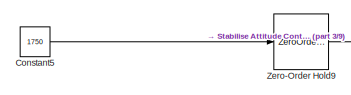
[diagram: root canvas - part 1/9, top left region]
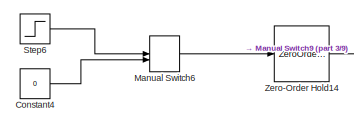
[diagram: root canvas - part 2/9, top left region]
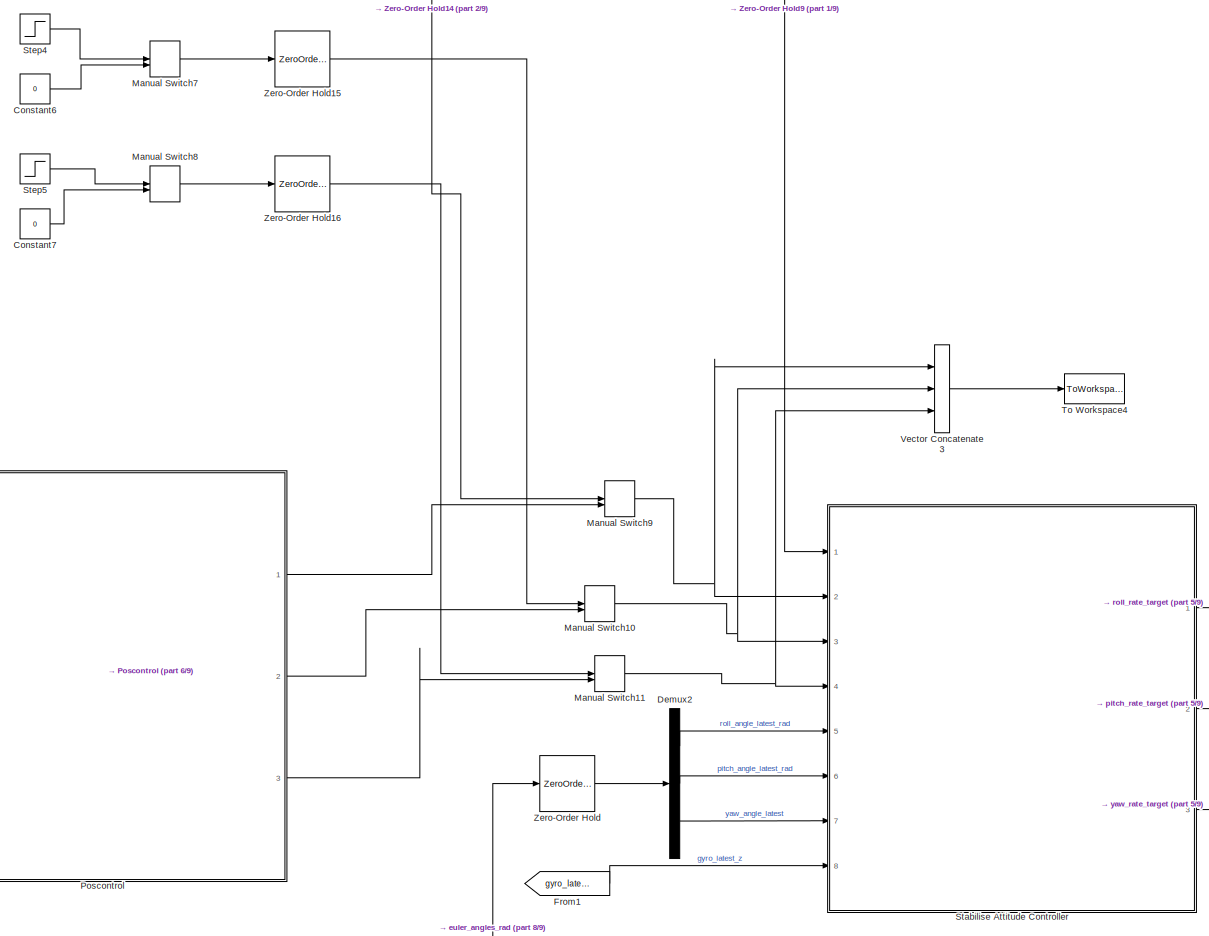
[diagram: root canvas - part 3/9, middle left region]
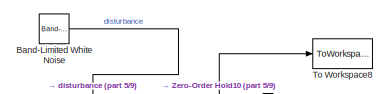
[diagram: root canvas - part 4/9, central region]
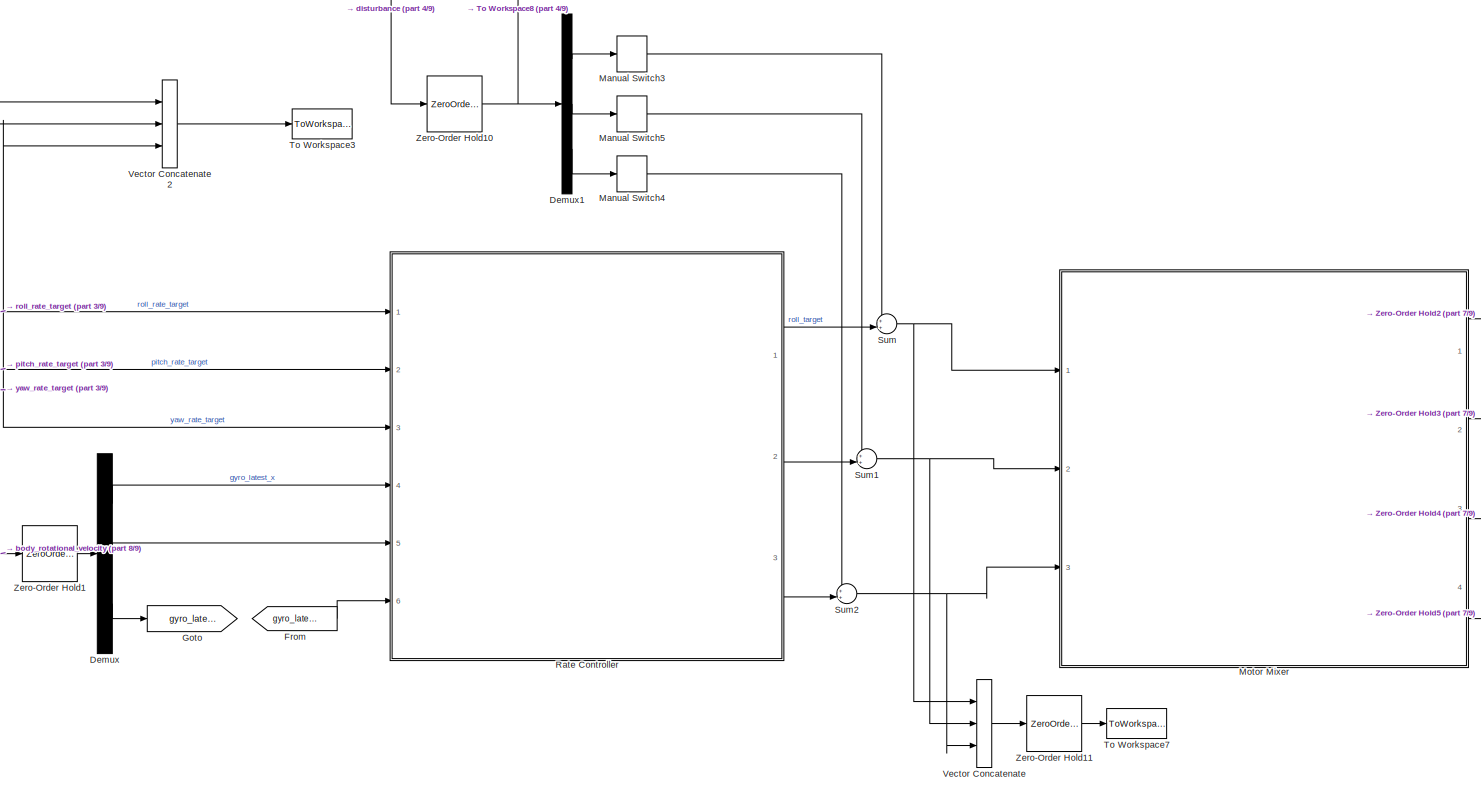
[diagram: root canvas - part 5/9, central region]
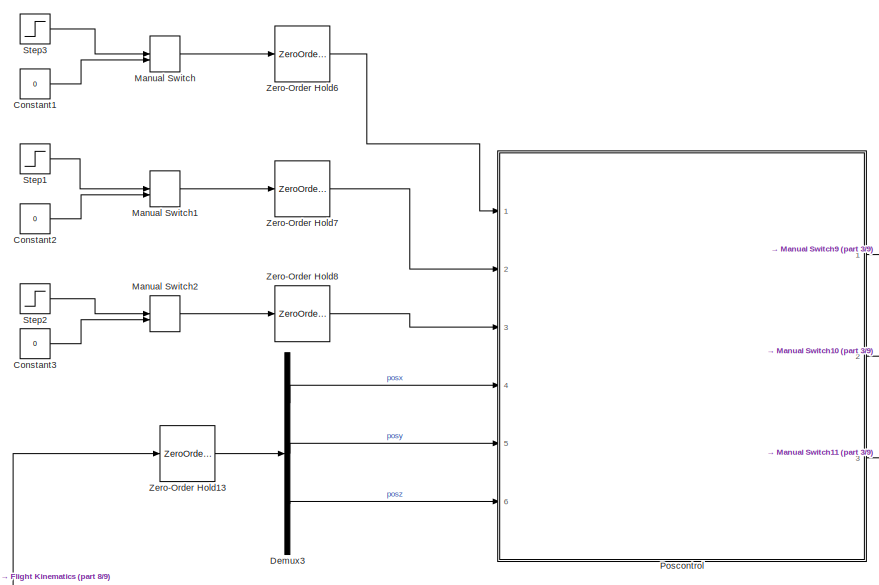
[diagram: root canvas - part 6/9, middle left region]
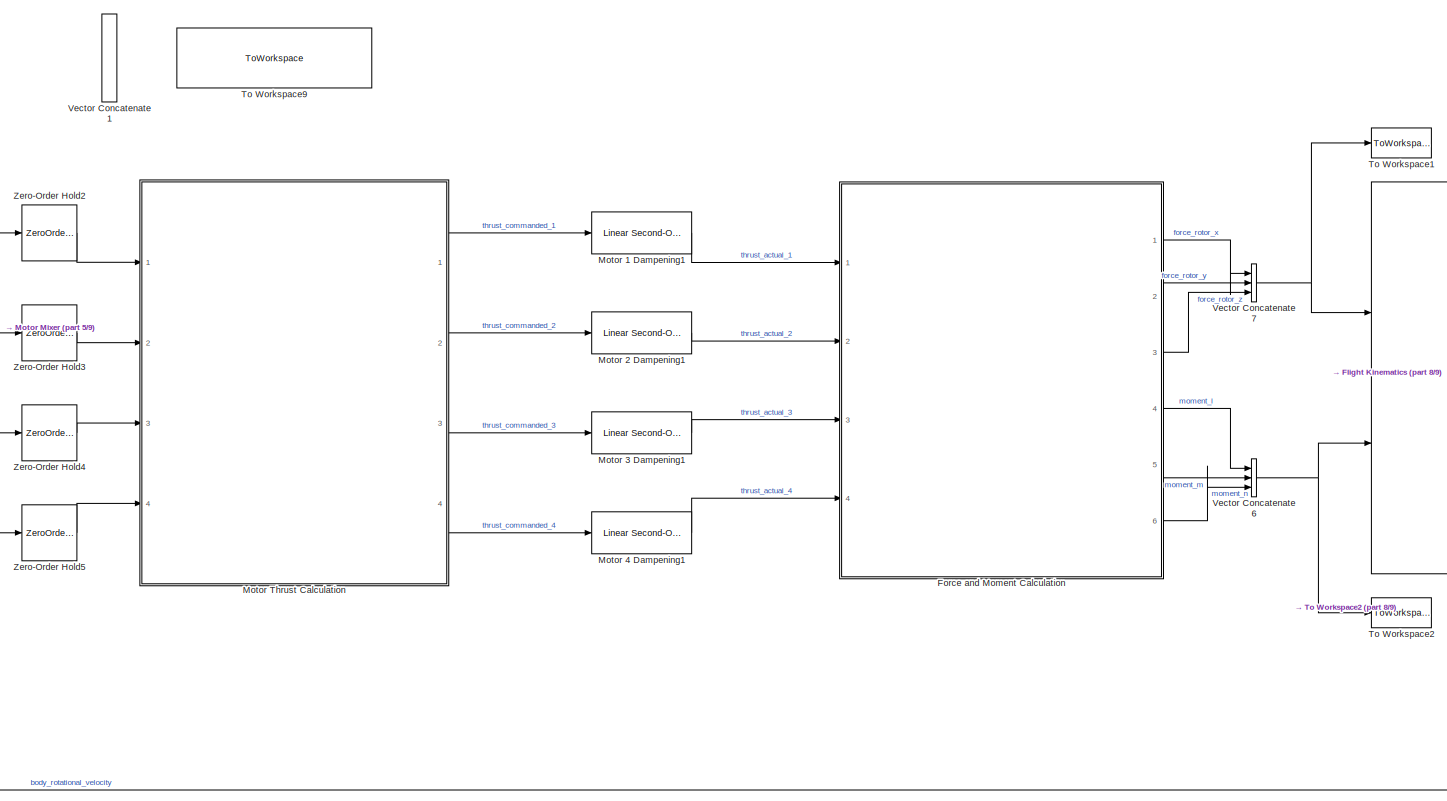
[diagram: root canvas - part 7/9, central region]
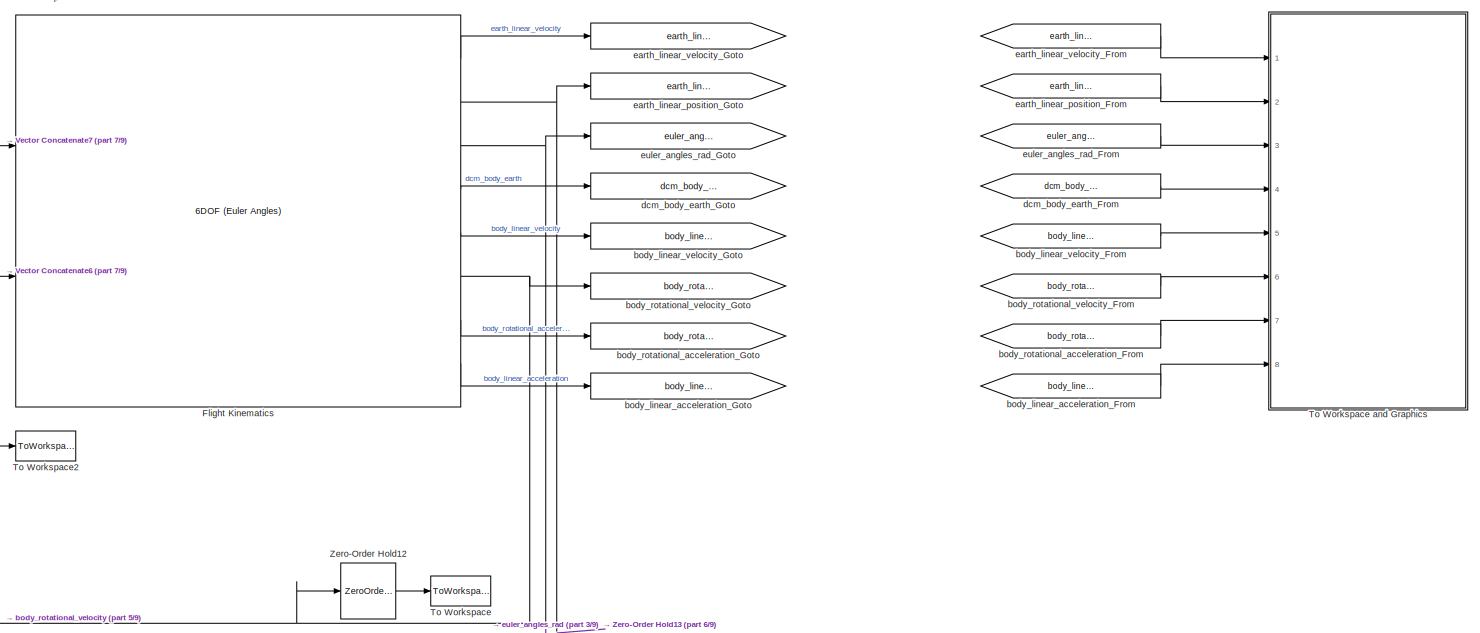
[diagram: root canvas - part 8/9, bottom right region]
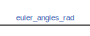
[diagram: root canvas - part 9/9, bottom center region]
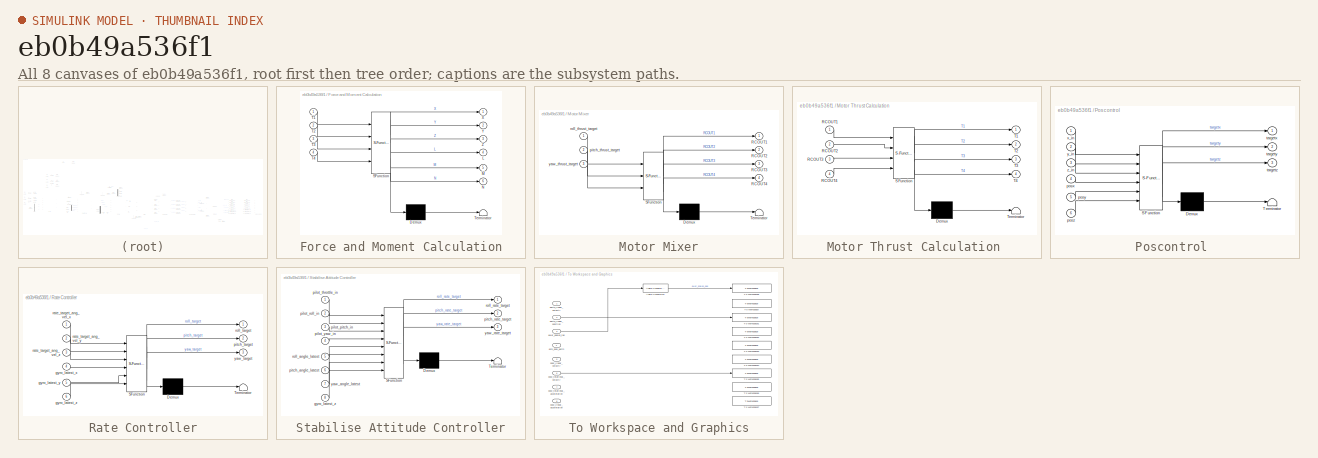
[diagram: thumbnail index - all 8 canvases of the model, root first then tree order]
MODEL slx_eb0b49a536f1
KIND model
CONFIG AbsTol = auto
CONFIG FixedStep = Ts
CONFIG MaxStep = auto
CONFIG MinStep = auto
CONFIG RelTol = 1e-3
CONFIG SampleTimeConstraint = Unconstrained
CONFIG Solver = VariableStepAuto
CONFIG SolverMode = Auto
CONFIG SolverName = VariableStepAuto
CONFIG StartTime = 0.0
CONFIG StopTime = 10
WORKSPACE source: MAT-file member
WORKSPACE MCOS: class17 (value not decoded)
BLOCK [Reference] Band-Limited White Noise  REF=simulink/Sources/Band-Limited
White Noise
  Ports = [0, 1]
  SourceBlock = simulink/Sources/Band-Limited\nWhite Noise
  SourceType = Band-Limited White Noise.
BLOCK [Constant] Constant1
  SampleTime = Ts
  Value = 0
BLOCK [Constant] Constant2
  SampleTime = Ts
  Value = 0
BLOCK [Constant] Constant3
  SampleTime = Ts
  Value = 0
BLOCK [Constant] Constant4
  SampleTime = Ts
  Value = 0
BLOCK [Constant] Constant5
  SampleTime = Ts
  Value = 1750
BLOCK [Constant] Constant6
  SampleTime = Ts
  Value = 0
BLOCK [Constant] Constant7
  SampleTime = Ts
  Value = 0
BLOCK [Demux] Demux
  DisplayOption = bar
  Outputs = 3
  Ports = [1, 3]
BLOCK [Demux] Demux1
  DisplayOption = bar
  Outputs = 3
  Ports = [1, 3]
BLOCK [Demux] Demux2
  DisplayOption = bar
  Outputs = 3
  Ports = [1, 3]
BLOCK [Demux] Demux3
  DisplayOption = bar
  Outputs = 3
  Ports = [1, 3]
BLOCK [Reference] Flight Kinematics  REF=aerolib6dof2/6DOF (Euler Angles)
  Ports = [2, 8]
  SourceBlock = aerolib6dof2/6DOF (Euler Angles)
  SourceType = 6DOF EoM (Body Axis)
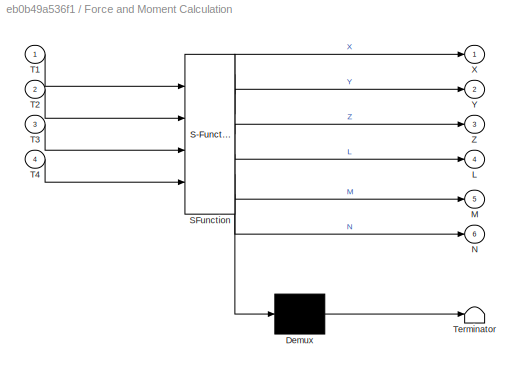
BLOCK [SubSystem] Force and Moment Calculation
  ErrorFcn = Stateflow.Translate.translate
  PermitHierarchicalResolution = ExplicitOnly
  Ports = [4, 6]
  RequestExecContextInheritance = off
  SFBlockType = MATLAB Function
  TreatAsAtomicUnit = on
  Variant = off
BLOCK [Demux] Force and Moment Calculation/ Demux 
  Outputs = 1
  Ports = [1, 1]
BLOCK [S-Function] Force and Moment Calculation/ SFunction 
  EnableBusSupport = on
  FunctionName = sf_sfun
  PortCounts = [4 7]
  Ports = [4, 7]
  SFunctionDeploymentMode = off
  Tag = Stateflow S-Function Plantvalidation_poscontrol 6
BLOCK [Terminator] Force and Moment Calculation/ Terminator 
BLOCK [Outport] Force and Moment Calculation/L
  IconDisplay = Port number
  Port = 4
BLOCK [Outport] Force and Moment Calculation/M
  IconDisplay = Port number
  Port = 5
BLOCK [Outport] Force and Moment Calculation/N
  IconDisplay = Port number
  Port = 6
BLOCK [Inport] Force and Moment Calculation/T1
  IconDisplay = Port number
BLOCK [Inport] Force and Moment Calculation/T2
  IconDisplay = Port number
  Port = 2
BLOCK [Inport] Force and Moment Calculation/T3
  IconDisplay = Port number
  Port = 3
BLOCK [Inport] Force and Moment Calculation/T4
  IconDisplay = Port number
  Port = 4
BLOCK [Outport] Force and Moment Calculation/X
  IconDisplay = Port number
BLOCK [Outport] Force and Moment Calculation/Y
  IconDisplay = Port number
  Port = 2
BLOCK [Outport] Force and Moment Calculation/Z
  IconDisplay = Port number
  Port = 3
BLOCK [From] From
  GotoTag = gyro_latest_z
BLOCK [From] From1
  GotoTag = gyro_latest_z
BLOCK [Goto] Goto
  GotoTag = gyro_latest_z
BLOCK [ManualSwitch] Manual Switch
BLOCK [ManualSwitch] Manual Switch1
  CurrentSetting = 0
BLOCK [ManualSwitch] Manual Switch10
  CurrentSetting = 0
BLOCK [ManualSwitch] Manual Switch11
  CurrentSetting = 0
BLOCK [ManualSwitch] Manual Switch2
  CurrentSetting = 0
BLOCK [ManualSwitch] Manual Switch3
  CurrentSetting = 0
BLOCK [ManualSwitch] Manual Switch4
  CurrentSetting = 0
BLOCK [ManualSwitch] Manual Switch5
  CurrentSetting = 0
BLOCK [ManualSwitch] Manual Switch6
BLOCK [ManualSwitch] Manual Switch7
  CurrentSetting = 0
BLOCK [ManualSwitch] Manual Switch8
  CurrentSetting = 0
BLOCK [ManualSwitch] Manual Switch9
  CurrentSetting = 0
BLOCK [Reference] Motor 1 Dampening1  REF=aerolibactuator/Linear Second-Order Actuator
  Ports = [1, 1]
  SourceBlock = aerolibactuator/Linear Second-Order Actuator
  SourceType = LinearSecondOrderActuator
BLOCK [Reference] Motor 2 Dampening1  REF=aerolibactuator/Linear Second-Order Actuator
  Ports = [1, 1]
  SourceBlock = aerolibactuator/Linear Second-Order Actuator
  SourceType = LinearSecondOrderActuator
BLOCK [Reference] Motor 3 Dampening1  REF=aerolibactuator/Linear Second-Order Actuator
  Ports = [1, 1]
  SourceBlock = aerolibactuator/Linear Second-Order Actuator
  SourceType = LinearSecondOrderActuator
BLOCK [Reference] Motor 4 Dampening1  REF=aerolibactuator/Linear Second-Order Actuator
  Ports = [1, 1]
  SourceBlock = aerolibactuator/Linear Second-Order Actuator
  SourceType = LinearSecondOrderActuator
BLOCK [SubSystem] Motor Mixer
  ErrorFcn = Stateflow.Translate.translate
  PermitHierarchicalResolution = ExplicitOnly
  Ports = [3, 4]
  RequestExecContextInheritance = off
  SFBlockType = MATLAB Function
  TreatAsAtomicUnit = on
  Variant = off
BLOCK [Demux] Motor Mixer/ Demux 
  Outputs = 1
  Ports = [1, 1]
BLOCK [S-Function] Motor Mixer/ SFunction 
  EnableBusSupport = on
  FunctionName = sf_sfun
  PortCounts = [3 5]
  Ports = [3, 5]
  SFunctionDeploymentMode = off
  Tag = Stateflow S-Function Plantvalidation_poscontrol 5
BLOCK [Terminator] Motor Mixer/ Terminator 
BLOCK [Outport] Motor Mixer/RCOUT1
  IconDisplay = Port number
BLOCK [Outport] Motor Mixer/RCOUT2
  IconDisplay = Port number
  Port = 2
BLOCK [Outport] Motor Mixer/RCOUT3
  IconDisplay = Port number
  Port = 3
BLOCK [Outport] Motor Mixer/RCOUT4
  IconDisplay = Port number
  Port = 4
BLOCK [Inport] Motor Mixer/pitch_thrust_target
  IconDisplay = Port number
  Port = 2
BLOCK [Inport] Motor Mixer/roll_thrust_target
  IconDisplay = Port number
BLOCK [Inport] Motor Mixer/yaw_thrust_target
  IconDisplay = Port number
  Port = 3
BLOCK [SubSystem] Motor Thrust Calculation 
  ErrorFcn = Stateflow.Translate.translate
  PermitHierarchicalResolution = ExplicitOnly
  Ports = [4, 4]
  RequestExecContextInheritance = off
  SFBlockType = MATLAB Function
  TreatAsAtomicUnit = on
  Variant = off
BLOCK [Demux] Motor Thrust Calculation / Demux 
  Outputs = 1
  Ports = [1, 1]
BLOCK [S-Function] Motor Thrust Calculation / SFunction 
  EnableBusSupport = on
  FunctionName = sf_sfun
  PortCounts = [4 5]
  Ports = [4, 5]
  SFunctionDeploymentMode = off
  Tag = Stateflow S-Function Plantvalidation_poscontrol 8
BLOCK [Terminator] Motor Thrust Calculation / Terminator 
BLOCK [Inport] Motor Thrust Calculation /RCOUT1
  IconDisplay = Port number
BLOCK [Inport] Motor Thrust Calculation /RCOUT2
  IconDisplay = Port number
  Port = 2
BLOCK [Inport] Motor Thrust Calculation /RCOUT3
  IconDisplay = Port number
  Port = 3
BLOCK [Inport] Motor Thrust Calculation /RCOUT4
  IconDisplay = Port number
  Port = 4
BLOCK [Outport] Motor Thrust Calculation /T1
  IconDisplay = Port number
BLOCK [Outport] Motor Thrust Calculation /T2
  IconDisplay = Port number
  Port = 2
BLOCK [Outport] Motor Thrust Calculation /T3
  IconDisplay = Port number
  Port = 3
BLOCK [Outport] Motor Thrust Calculation /T4
  IconDisplay = Port number
  Port = 4
BLOCK [SubSystem] Poscontrol 
  ErrorFcn = Stateflow.Translate.translate
  PermitHierarchicalResolution = ExplicitOnly
  Ports = [6, 3]
  RequestExecContextInheritance = off
  SFBlockType = MATLAB Function
  TreatAsAtomicUnit = on
  Variant = off
BLOCK [Demux] Poscontrol / Demux 
  Outputs = 1
  Ports = [1, 1]
BLOCK [S-Function] Poscontrol / SFunction 
  EnableBusSupport = on
  FunctionName = sf_sfun
  PortCounts = [6 4]
  Ports = [6, 4]
  SFunctionDeploymentMode = off
  Tag = Stateflow S-Function Plantvalidation_poscontrol 3
BLOCK [Terminator] Poscontrol / Terminator 
BLOCK [Inport] Poscontrol /posx
  IconDisplay = Port number
  Port = 4
BLOCK [Inport] Poscontrol /posy
  IconDisplay = Port number
  Port = 5
BLOCK [Inport] Poscontrol /posz
  IconDisplay = Port number
  Port = 6
BLOCK [Outport] Poscontrol /targetx
  IconDisplay = Port number
BLOCK [Outport] Poscontrol /targety
  IconDisplay = Port number
  Port = 2
BLOCK [Outport] Poscontrol /targetz
  IconDisplay = Port number
  Port = 3
BLOCK [Inport] Poscontrol /x_in
  IconDisplay = Port number
BLOCK [Inport] Poscontrol /y_in
  IconDisplay = Port number
  Port = 2
BLOCK [Inport] Poscontrol /z_in
  IconDisplay = Port number
  Port = 3
BLOCK [SubSystem] Rate Controller
  ErrorFcn = Stateflow.Translate.translate
  PermitHierarchicalResolution = ExplicitOnly
  Ports = [6, 3]
  RequestExecContextInheritance = off
  SFBlockType = MATLAB Function
  TreatAsAtomicUnit = on
  Variant = off
BLOCK [Demux] Rate Controller/ Demux 
  Outputs = 1
  Ports = [1, 1]
BLOCK [S-Function] Rate Controller/ SFunction 
  EnableBusSupport = on
  FunctionName = sf_sfun
  PortCounts = [6 4]
  Ports = [6, 4]
  SFunctionDeploymentMode = off
  Tag = Stateflow S-Function Plantvalidation_poscontrol 1
BLOCK [Terminator] Rate Controller/ Terminator 
BLOCK [Inport] Rate Controller/gyro_latest_x
  IconDisplay = Port number
  Port = 4
BLOCK [Inport] Rate Controller/gyro_latest_y
  IconDisplay = Port number
  Port = 5
BLOCK [Inport] Rate Controller/gyro_latest_z
  IconDisplay = Port number
  Port = 6
BLOCK [Outport] Rate Controller/pitch_target
  IconDisplay = Port number
  Port = 2
BLOCK [Inport] Rate Controller/rate_target_ang_vel_x
  IconDisplay = Port number
BLOCK [Inport] Rate Controller/rate_target_ang_vel_y
  IconDisplay = Port number
  Port = 2
BLOCK [Inport] Rate Controller/rate_target_ang_vel_z
  IconDisplay = Port number
  Port = 3
BLOCK [Outport] Rate Controller/roll_target
  IconDisplay = Port number
BLOCK [Outport] Rate Controller/yaw_target
  IconDisplay = Port number
  Port = 3
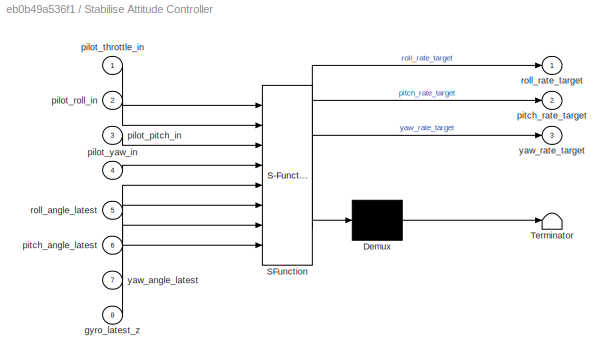
BLOCK [SubSystem] Stabilise Attitude Controller
  ErrorFcn = Stateflow.Translate.translate
  PermitHierarchicalResolution = ExplicitOnly
  Ports = [8, 3]
  RequestExecContextInheritance = off
  SFBlockType = MATLAB Function
  TreatAsAtomicUnit = on
  Variant = off
BLOCK [Demux] Stabilise Attitude Controller/ Demux 
  Outputs = 1
  Ports = [1, 1]
BLOCK [S-Function] Stabilise Attitude Controller/ SFunction 
  EnableBusSupport = on
  FunctionName = sf_sfun
  PortCounts = [8 4]
  Ports = [8, 4]
  SFunctionDeploymentMode = off
  Tag = Stateflow S-Function Plantvalidation_poscontrol 2
BLOCK [Terminator] Stabilise Attitude Controller/ Terminator 
BLOCK [Inport] Stabilise Attitude Controller/gyro_latest_z
  IconDisplay = Port number
  Port = 8
BLOCK [Inport] Stabilise Attitude Controller/pilot_pitch_in
  IconDisplay = Port number
  Port = 3
BLOCK [Inport] Stabilise Attitude Controller/pilot_roll_in
  IconDisplay = Port number
  Port = 2
BLOCK [Inport] Stabilise Attitude Controller/pilot_throttle_in
  IconDisplay = Port number
BLOCK [Inport] Stabilise Attitude Controller/pilot_yaw_in
  IconDisplay = Port number
  Port = 4
BLOCK [Inport] Stabilise Attitude Controller/pitch_angle_latest
  IconDisplay = Port number
  Port = 6
BLOCK [Outport] Stabilise Attitude Controller/pitch_rate_target
  IconDisplay = Port number
  Port = 2
BLOCK [Inport] Stabilise Attitude Controller/roll_angle_latest
  IconDisplay = Port number
  Port = 5
BLOCK [Outport] Stabilise Attitude Controller/roll_rate_target
  IconDisplay = Port number
BLOCK [Inport] Stabilise Attitude Controller/yaw_angle_latest
  IconDisplay = Port number
  Port = 7
BLOCK [Outport] Stabilise Attitude Controller/yaw_rate_target
  IconDisplay = Port number
  Port = 3
BLOCK [Step] Step1
  After = 800
  SampleTime = Ts
  Time = 0.1
BLOCK [Step] Step2
  After = 8
  SampleTime = Ts
  Time = 0.1
BLOCK [Step] Step3
  After = 10
  SampleTime = Ts
  Time = 0.1
BLOCK [Step] Step4
  After = 800
  SampleTime = Ts
  Time = 0.1
BLOCK [Step] Step5
  After = 8
  SampleTime = Ts
  Time = 0.1
BLOCK [Step] Step6
  After = 10
  SampleTime = Ts
  Time = 0.1
BLOCK [Sum] Sum
  IconShape = round
  InputSameDT = off
  Inputs = ++|
  OutDataTypeStr = Inherit: Inherit via internal rule
  Ports = [2, 1]
  SaturateOnIntegerOverflow = off
BLOCK [Sum] Sum1
  IconShape = round
  InputSameDT = off
  Inputs = ++|
  OutDataTypeStr = Inherit: Inherit via internal rule
  Ports = [2, 1]
  SaturateOnIntegerOverflow = off
BLOCK [Sum] Sum2
  IconShape = round
  InputSameDT = off
  Inputs = ++|
  OutDataTypeStr = Inherit: Inherit via internal rule
  Ports = [2, 1]
  SaturateOnIntegerOverflow = off
BLOCK [ToWorkspace] To Workspace
  FixptAsFi = on
  MaxDataPoints = inf
  Ports = [1]
  SampleTime = -1
  Save2DSignal = 3-D array (concatenate along third dimension)
  VariableName = y
BLOCK [SubSystem] To Workspace and Graphics
  Ports = [8]
  RequestExecContextInheritance = off
  Variant = off
BLOCK [Reference] To Workspace and Graphics/Angle Conversion  REF=aerolibconvert2/Angle Conversion
  Ports = [1, 1]
  SourceBlock = aerolibconvert2/Angle Conversion
  SourceType = Angle Conversion
BLOCK [ToWorkspace] To Workspace and Graphics/To Workspace
  FixptAsFi = on
  MaxDataPoints = inf
  Ports = [1]
  SampleTime = -1
  Save2DSignal = 3-D array (concatenate along third dimension)
  VariableName = earth_linear_velocity
BLOCK [ToWorkspace] To Workspace and Graphics/To Workspace1
  FixptAsFi = on
  MaxDataPoints = inf
  Ports = [1]
  SampleTime = -1
  Save2DSignal = 3-D array (concatenate along third dimension)
  VariableName = earth_linear_position
BLOCK [ToWorkspace] To Workspace and Graphics/To Workspace2
  FixptAsFi = on
  MaxDataPoints = inf
  Ports = [1]
  SampleTime = -1
  Save2DSignal = 3-D array (concatenate along third dimension)
  VariableName = euler_angles_rad
BLOCK [ToWorkspace] To Workspace and Graphics/To Workspace3
  FixptAsFi = on
  MaxDataPoints = inf
  Ports = [1]
  SampleTime = -1
  Save2DSignal = 3-D array (concatenate along third dimension)
  VariableName = dcm_body_earth
BLOCK [ToWorkspace] To Workspace and Graphics/To Workspace4
  FixptAsFi = on
  MaxDataPoints = inf
  Ports = [1]
  SampleTime = -1
  Save2DSignal = 3-D array (concatenate along third dimension)
  VariableName = body_linear_velocity
BLOCK [ToWorkspace] To Workspace and Graphics/To Workspace5
  FixptAsFi = on
  MaxDataPoints = inf
  Ports = [1]
  SampleTime = -1
  Save2DSignal = 3-D array (concatenate along third dimension)
  VariableName = body_rotational_velocity
BLOCK [ToWorkspace] To Workspace and Graphics/To Workspace6
  FixptAsFi = on
  MaxDataPoints = inf
  Ports = [1]
  SampleTime = -1
  Save2DSignal = 3-D array (concatenate along third dimension)
  VariableName = body_rotational_acceleration
BLOCK [ToWorkspace] To Workspace and Graphics/To Workspace7
  FixptAsFi = on
  MaxDataPoints = inf
  Ports = [1]
  SampleTime = -1
  Save2DSignal = 3-D array (concatenate along third dimension)
  VariableName = body_linear_acceleration
BLOCK [ToWorkspace] To Workspace and Graphics/To Workspace8
  FixptAsFi = on
  MaxDataPoints = inf
  Ports = [1]
  SampleTime = -1
  Save2DSignal = 3-D array (concatenate along third dimension)
  VariableName = euler_angles_deg
BLOCK [Inport] To Workspace and Graphics/body_linear_acceleration
  IconDisplay = Port number
  Port = 8
BLOCK [Inport] To Workspace and Graphics/body_linear_velocity
  IconDisplay = Port number
  Port = 5
BLOCK [Inport] To Workspace and Graphics/body_rotational_acceleration
  IconDisplay = Port number
  Port = 7
BLOCK [Inport] To Workspace and Graphics/body_rotational_velocity
  IconDisplay = Port number
  Port = 6
BLOCK [Inport] To Workspace and Graphics/dcm_body_earth
  IconDisplay = Port number
  Port = 4
BLOCK [Inport] To Workspace and Graphics/earth_linear_position
  IconDisplay = Port number
  Port = 2
BLOCK [Inport] To Workspace and Graphics/earth_linear_velocity
  IconDisplay = Port number
BLOCK [Inport] To Workspace and Graphics/euler_angles_rad
  IconDisplay = Port number
  Port = 3
BLOCK [ToWorkspace] To Workspace1
  FixptAsFi = on
  MaxDataPoints = inf
  Ports = [1]
  SampleTime = -1
  Save2DSignal = 3-D array (concatenate along third dimension)
  VariableName = force
BLOCK [ToWorkspace] To Workspace2
  FixptAsFi = on
  MaxDataPoints = inf
  Ports = [1]
  SampleTime = -1
  Save2DSignal = 3-D array (concatenate along third dimension)
  VariableName = moment
BLOCK [ToWorkspace] To Workspace3
  FixptAsFi = on
  MaxDataPoints = inf
  Ports = [1]
  SampleTime = -1
  Save2DSignal = 3-D array (concatenate along third dimension)
  VariableName = rate_target
BLOCK [ToWorkspace] To Workspace4
  FixptAsFi = on
  MaxDataPoints = inf
  Ports = [1]
  SampleTime = -1
  Save2DSignal = 3-D array (concatenate along third dimension)
  VariableName = angletarget
BLOCK [ToWorkspace] To Workspace7
  FixptAsFi = on
  MaxDataPoints = inf
  Ports = [1]
  SampleTime = -1
  Save2DSignal = 3-D array (concatenate along third dimension)
  VariableName = u
BLOCK [ToWorkspace] To Workspace8
  FixptAsFi = on
  MaxDataPoints = inf
  Ports = [1]
  SampleTime = -1
  Save2DSignal = 3-D array (concatenate along third dimension)
  VariableName = d
BLOCK [ToWorkspace] To Workspace9
  FixptAsFi = on
  MaxDataPoints = inf
  Ports = [1]
  SampleTime = -1
  Save2DSignal = 3-D array (concatenate along third dimension)
  VariableName = RCOUT_limit_check
BLOCK [Concatenate] Vector Concatenate
  NumInputs = 3
  Ports = [3, 1]
BLOCK [Concatenate] Vector Concatenate1
  NumInputs = 4
  Ports = [4, 1]
BLOCK [Concatenate] Vector Concatenate2
  NumInputs = 3
  Ports = [3, 1]
BLOCK [Concatenate] Vector Concatenate3
  NumInputs = 3
  Ports = [3, 1]
BLOCK [Concatenate] Vector Concatenate6
  NumInputs = 3
  Ports = [3, 1]
BLOCK [Concatenate] Vector Concatenate7
  NumInputs = 3
  Ports = [3, 1]
BLOCK [ZeroOrderHold] Zero-Order Hold
  SampleTime = dtzoh
BLOCK [ZeroOrderHold] Zero-Order Hold1
  SampleTime = dtzoh
BLOCK [ZeroOrderHold] Zero-Order Hold10
  SampleTime = dtzoh
BLOCK [ZeroOrderHold] Zero-Order Hold11
  SampleTime = dtzoh
BLOCK [ZeroOrderHold] Zero-Order Hold12
  SampleTime = dtzoh
BLOCK [ZeroOrderHold] Zero-Order Hold13
  SampleTime = dtzoh
BLOCK [ZeroOrderHold] Zero-Order Hold14
  SampleTime = dtzoh
BLOCK [ZeroOrderHold] Zero-Order Hold15
  SampleTime = dtzoh
BLOCK [ZeroOrderHold] Zero-Order Hold16
  SampleTime = dtzoh
BLOCK [ZeroOrderHold] Zero-Order Hold2
  SampleTime = dtzoh
BLOCK [ZeroOrderHold] Zero-Order Hold3
  SampleTime = dtzoh
BLOCK [ZeroOrderHold] Zero-Order Hold4
  SampleTime = dtzoh
BLOCK [ZeroOrderHold] Zero-Order Hold5
  SampleTime = dtzoh
BLOCK [ZeroOrderHold] Zero-Order Hold6
  SampleTime = dtzoh
BLOCK [ZeroOrderHold] Zero-Order Hold7
  SampleTime = dtzoh
BLOCK [ZeroOrderHold] Zero-Order Hold8
  SampleTime = dtzoh
BLOCK [ZeroOrderHold] Zero-Order Hold9
  SampleTime = dtzoh
BLOCK [From] body_linear_acceleration_From
  GotoTag = body_linear_acceleration
  TagVisibility = global
BLOCK [Goto] body_linear_acceleration_Goto
  GotoTag = body_linear_acceleration
  TagVisibility = global
BLOCK [From] body_linear_velocity_From
  GotoTag = body_linear_velocity
  TagVisibility = global
BLOCK [Goto] body_linear_velocity_Goto
  GotoTag = body_linear_velocity
  TagVisibility = global
BLOCK [From] body_rotational_acceleration_From
  GotoTag = body_rotational_acceleration
  TagVisibility = global
BLOCK [Goto] body_rotational_acceleration_Goto
  GotoTag = body_rotational_acceleration
  TagVisibility = global
BLOCK [From] body_rotational_velocity_From
  GotoTag = body_rotational_velocity
  TagVisibility = global
BLOCK [Goto] body_rotational_velocity_Goto
  GotoTag = body_rotational_velocity
  TagVisibility = global
BLOCK [From] dcm_body_earth_From
  GotoTag = dcm_body_earth
  TagVisibility = global
BLOCK [Goto] dcm_body_earth_Goto
  GotoTag = dcm_body_earth
  TagVisibility = global
BLOCK [From] earth_linear_position_From
  GotoTag = earth_linear_position
  TagVisibility = global
BLOCK [Goto] earth_linear_position_Goto
  GotoTag = earth_linear_position
  TagVisibility = global
BLOCK [From] earth_linear_velocity_From
  GotoTag = earth_linear_velocity
  TagVisibility = global
BLOCK [Goto] earth_linear_velocity_Goto
  GotoTag = earth_linear_velocity
  TagVisibility = global
BLOCK [From] euler_angles_rad_From
  GotoTag = euler_angles_rad
  TagVisibility = global
BLOCK [Goto] euler_angles_rad_Goto
  GotoTag = euler_angles_rad
  TagVisibility = global
LINE Band-Limited White Noise:1 -> Zero-Order Hold10:1
LINE Constant1:1 -> Manual Switch:2
LINE Constant2:1 -> Manual Switch1:2
LINE Constant3:1 -> Manual Switch2:2
LINE Constant4:1 -> Manual Switch6:2
LINE Constant5:1 -> Zero-Order Hold9:1
LINE Constant6:1 -> Manual Switch7:2
LINE Constant7:1 -> Manual Switch8:2
LINE Demux1:1 -> Manual Switch3:1
LINE Demux1:2 -> Manual Switch5:1
LINE Demux1:3 -> Manual Switch4:1
LINE Demux2:1 -> Stabilise Attitude Controller:5
LINE Demux2:2 -> Stabilise Attitude Controller:6
LINE Demux2:3 -> Stabilise Attitude Controller:7
LINE Demux3:1 -> Poscontrol :4
LINE Demux3:2 -> Poscontrol :5
LINE Demux3:3 -> Poscontrol :6
LINE Demux:1 -> Rate Controller:4
LINE Demux:2 -> Rate Controller:5
LINE Demux:3 -> Goto:1
LINE Flight Kinematics:1 -> earth_linear_velocity_Goto:1
NET Flight Kinematics:2 -> Zero-Order Hold13:1, earth_linear_position_Goto:1
NET Flight Kinematics:3 -> Zero-Order Hold:1, euler_angles_rad_Goto:1
LINE Flight Kinematics:4 -> dcm_body_earth_Goto:1
LINE Flight Kinematics:5 -> body_linear_velocity_Goto:1
NET Flight Kinematics:6 -> Zero-Order Hold12:1, Zero-Order Hold1:1, body_rotational_velocity_Goto:1
LINE Flight Kinematics:7 -> body_rotational_acceleration_Goto:1
LINE Flight Kinematics:8 -> body_linear_acceleration_Goto:1
LINE Force and Moment Calculation:1 -> Vector Concatenate7:1
LINE Force and Moment Calculation:2 -> Vector Concatenate7:2
LINE Force and Moment Calculation:3 -> Vector Concatenate7:3
LINE Force and Moment Calculation:4 -> Vector Concatenate6:1
LINE Force and Moment Calculation:5 -> Vector Concatenate6:2
LINE Force and Moment Calculation:6 -> Vector Concatenate6:3
LINE From1:1 -> Stabilise Attitude Controller:8
LINE From:1 -> Rate Controller:6
NET Manual Switch10:1 -> Stabilise Attitude Controller:3, Vector Concatenate3:2
NET Manual Switch11:1 -> Stabilise Attitude Controller:4, Vector Concatenate3:3
LINE Manual Switch1:1 -> Zero-Order Hold7:1
LINE Manual Switch2:1 -> Zero-Order Hold8:1
LINE Manual Switch3:1 -> Sum:1
LINE Manual Switch4:1 -> Sum2:1
LINE Manual Switch5:1 -> Sum1:1
LINE Manual Switch6:1 -> Zero-Order Hold14:1
LINE Manual Switch7:1 -> Zero-Order Hold15:1
LINE Manual Switch8:1 -> Zero-Order Hold16:1
NET Manual Switch9:1 -> Stabilise Attitude Controller:2, Vector Concatenate3:1
LINE Manual Switch:1 -> Zero-Order Hold6:1
LINE Motor 1 Dampening1:1 -> Force and Moment Calculation:1
LINE Motor 2 Dampening1:1 -> Force and Moment Calculation:2
LINE Motor 3 Dampening1:1 -> Force and Moment Calculation:3
LINE Motor 4 Dampening1:1 -> Force and Moment Calculation:4
LINE Motor Mixer:1 -> Zero-Order Hold2:1
LINE Motor Mixer:2 -> Zero-Order Hold3:1
LINE Motor Mixer:3 -> Zero-Order Hold4:1
LINE Motor Mixer:4 -> Zero-Order Hold5:1
LINE Motor Thrust Calculation :1 -> Motor 1 Dampening1:1
LINE Motor Thrust Calculation :2 -> Motor 2 Dampening1:1
LINE Motor Thrust Calculation :3 -> Motor 3 Dampening1:1
LINE Motor Thrust Calculation :4 -> Motor 4 Dampening1:1
LINE Poscontrol :1 -> Manual Switch9:2
LINE Poscontrol :2 -> Manual Switch10:2
LINE Poscontrol :3 -> Manual Switch11:2
LINE Rate Controller:1 -> Sum:2
LINE Rate Controller:2 -> Sum1:2
LINE Rate Controller:3 -> Sum2:2
NET Stabilise Attitude Controller:1 -> Rate Controller:1, Vector Concatenate2:1
NET Stabilise Attitude Controller:2 -> Rate Controller:2, Vector Concatenate2:2
NET Stabilise Attitude Controller:3 -> Rate Controller:3, Vector Concatenate2:3
LINE Step1:1 -> Manual Switch1:1
LINE Step2:1 -> Manual Switch2:1
LINE Step3:1 -> Manual Switch:1
LINE Step4:1 -> Manual Switch7:1
LINE Step5:1 -> Manual Switch8:1
LINE Step6:1 -> Manual Switch6:1
NET Sum1:1 -> Motor Mixer:2, Vector Concatenate:2
NET Sum2:1 -> Motor Mixer:3, Vector Concatenate:3
NET Sum:1 -> Motor Mixer:1, Vector Concatenate:1
LINE To Workspace and Graphics/Angle Conversion:1 -> To Workspace and Graphics/To Workspace8:1
LINE To Workspace and Graphics/body_rotational_velocity:1 -> To Workspace and Graphics/To Workspace5:1
LINE To Workspace and Graphics/earth_linear_position:1 -> To Workspace and Graphics/To Workspace1:1
LINE To Workspace and Graphics/euler_angles_rad:1 -> To Workspace and Graphics/Angle Conversion:1
LINE Vector Concatenate2:1 -> To Workspace3:1
LINE Vector Concatenate3:1 -> To Workspace4:1
NET Vector Concatenate6:1 -> Flight Kinematics:2, To Workspace2:1
NET Vector Concatenate7:1 -> Flight Kinematics:1, To Workspace1:1
LINE Vector Concatenate:1 -> Zero-Order Hold11:1
NET Zero-Order Hold10:1 -> Demux1:1, To Workspace8:1
LINE Zero-Order Hold11:1 -> To Workspace7:1
LINE Zero-Order Hold12:1 -> To Workspace:1
LINE Zero-Order Hold13:1 -> Demux3:1
LINE Zero-Order Hold14:1 -> Manual Switch9:1
LINE Zero-Order Hold15:1 -> Manual Switch10:1
LINE Zero-Order Hold16:1 -> Manual Switch11:1
LINE Zero-Order Hold1:1 -> Demux:1
LINE Zero-Order Hold2:1 -> Motor Thrust Calculation :1
LINE Zero-Order Hold3:1 -> Motor Thrust Calculation :2
LINE Zero-Order Hold4:1 -> Motor Thrust Calculation :3
LINE Zero-Order Hold5:1 -> Motor Thrust Calculation :4
LINE Zero-Order Hold6:1 -> Poscontrol :1
LINE Zero-Order Hold7:1 -> Poscontrol :2
LINE Zero-Order Hold8:1 -> Poscontrol :3
LINE Zero-Order Hold9:1 -> Stabilise Attitude Controller:1
LINE Zero-Order Hold:1 -> Demux2:1
LINE body_linear_acceleration_From:1 -> To Workspace and Graphics:8
LINE body_linear_velocity_From:1 -> To Workspace and Graphics:5
LINE body_rotational_acceleration_From:1 -> To Workspace and Graphics:7
LINE body_rotational_velocity_From:1 -> To Workspace and Graphics:6
LINE dcm_body_earth_From:1 -> To Workspace and Graphics:4
LINE earth_linear_position_From:1 -> To Workspace and Graphics:2
LINE earth_linear_velocity_From:1 -> To Workspace and Graphics:1
LINE euler_angles_rad_From:1 -> To Workspace and Graphics:3
note: NET lines group one-source signal fan-out (src -> all destinations, sorted); 1:1 wires keep LINE
CHART Rate Controller states=1 transitions=1
  STATE_LABEL 'eML_blk_kernel()'
  STATE_LABEL 'SCRIPT:\nfunction [roll_target, pitch_target, yaw_target]  = rate_controller_run( rate_target_ang_vel_x, rate_target_ang_vel_y, rate_target_ang_vel_z , gyro_latest_x, gyro_latest_y, gyro_latest_z)\n%RATE_CONTROLLER_RUN Summary of this function goes here\n%   Detailed explanation goes here\n\nupdate_throttle_rpy_mix();\n\nroll_target = rate_target_to_motor_roll(gyro_latest_x, rate_target_ang_vel_x);\n% rol...<+215ch>'
CHART Stabilise Attitude Controller states=1 transitions=1
  STATE_LABEL 'eML_blk_kernel()'
  STATE_LABEL 'SCRIPT:\nfunction [roll_rate_target, pitch_rate_target, yaw_rate_target]   = stabilise_run( pilot_throttle_in, pilot_roll_in, pilot_pitch_in, pilot_yaw_in, roll_angle_latest, pitch_angle_latest, yaw_angle_latest, gyro_latest_z)\n%% stabilise_run\n% \n% void Copter::stabilize_run()\n% {\n%     float target_roll, target_pitch;\n%     float target_yaw_rate;\n%     float pilot_throttle_scaled;\n% \n%     // con...<+1952ch>'
CHART Poscontrol
 states=1 transitions=1
  STATE_LABEL 'eML_blk_kernel()'
  STATE_LABEL 'SCRIPT:\nfunction [targetx,targety,targetz]   = Poscontrol(x_in,y_in,z_in,posx,posy,posz)\n%% Poscontrol\n\nerrorx = x_in-posx;\nerrory = y_in-posy;\nerrorz = 0;\n\ntargetx = errorx;\ntargety = errory;\ntargetz = errorz; \n\n\nend\n\n'
CHART Motor Mixer states=1 transitions=1
  STATE_LABEL 'eML_blk_kernel()'
  STATE_LABEL 'SCRIPT:\nfunction [RCOUT1, RCOUT2, RCOUT3, RCOUT4 ]  = motor_mixer( roll_thrust_target, pitch_thrust_target, yaw_thrust_target)\n%% Motor Mixer\n\n%\n%   Matlab Implementation of the ArduPilot Motor Mixer\n%   Outputs Motor Commands based on required rate targets\n%\n    global pwm_min pwm_max spin_min spin_max\n    \n    % Update throttle filter\n    update_throttle_filter();\n\n    % Update battery resistanc...<+1451ch>'
CHART Force and Moment Calculation states=1 transitions=1
  STATE_LABEL 'eML_blk_kernel()'
  STATE_LABEL 'SCRIPT:\nfunction [X, Y, Z, L, M, N] = forceMomentCalc(T1, T2, T3, T4)\n%T1 = Motor 1 Thrust                (N)\n%T2 = Motor 2 Thrust                (N)\n%T3 = Motor 3 Thrust                (N)\n%T4 = Motor 4 Thrust                (N)\n%X = Force in x axis                (N)\n%Y = Force in y axis                (N)                \n%Z = Force in z axis                (N)\n%L = Rolling moment around x axis ...<+692ch>'
CHART Motor Thrust Calculation
 states=1 transitions=1
  STATE_LABEL 'eML_blk_kernel()'
  STATE_LABEL 'SCRIPT:\nfunction [T1, T2, T3, T4] = motorOutputs(RCOUT1, RCOUT2, RCOUT3, RCOUT4)\n%   RCOUTx = PWM Value out of the Autopilot                (1000us-2000us)\n%   Tx = Thrust value produced by the motor/rotor pair     (N)\n%\n%   1.Calculate Tmax by adding overhead onto hover throttle\n%   2.Map RCOUT values between 0 and 1\n%   3.Multiply unity RCOUT value by Tmax\n\n% Tmax = 2*(2.2*9.8);                 ...<+2212ch>'
